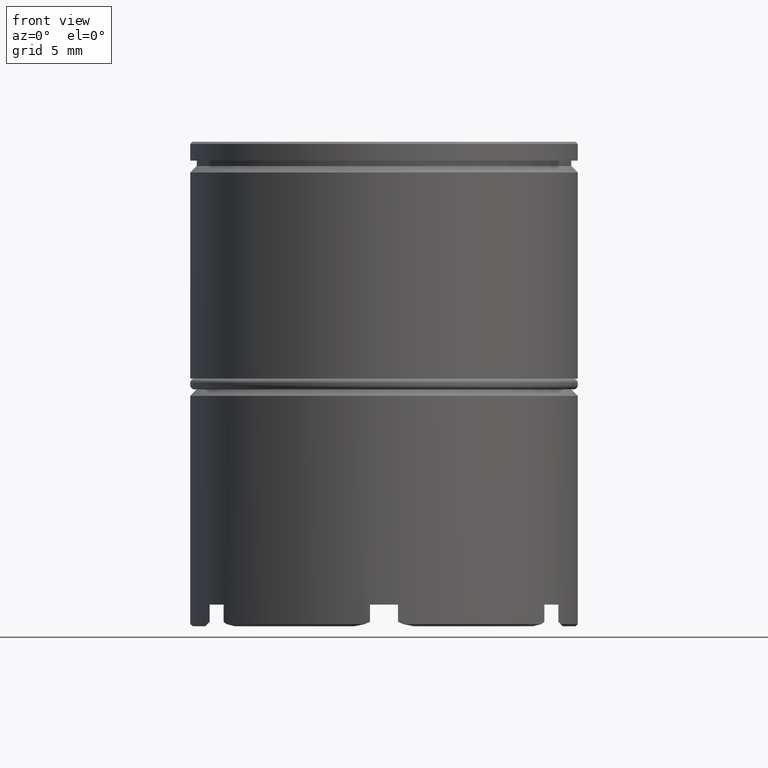
[diagram: clean part render]
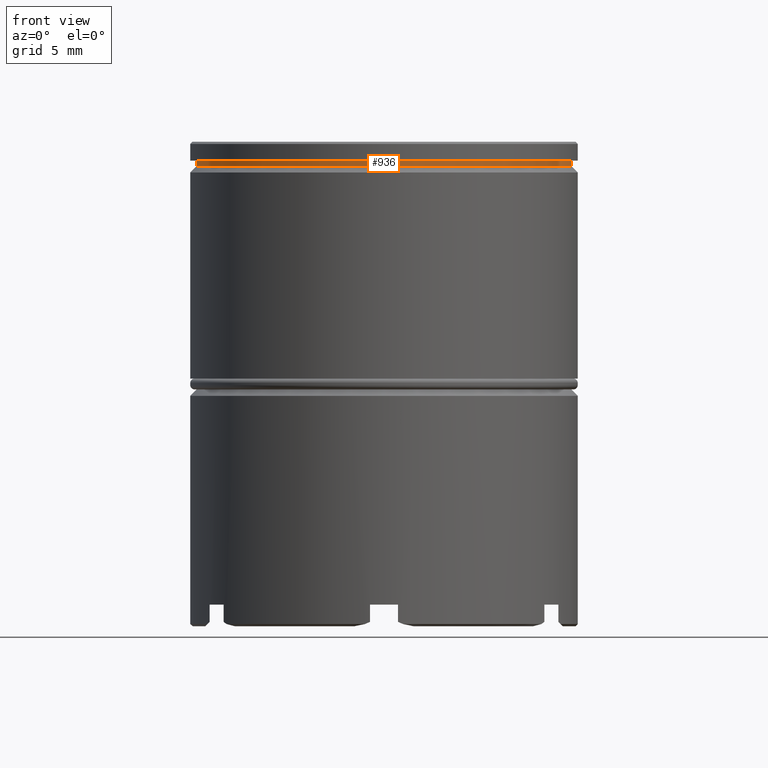
[diagram: same view with one face highlighted and labeled with its STEP entity id]
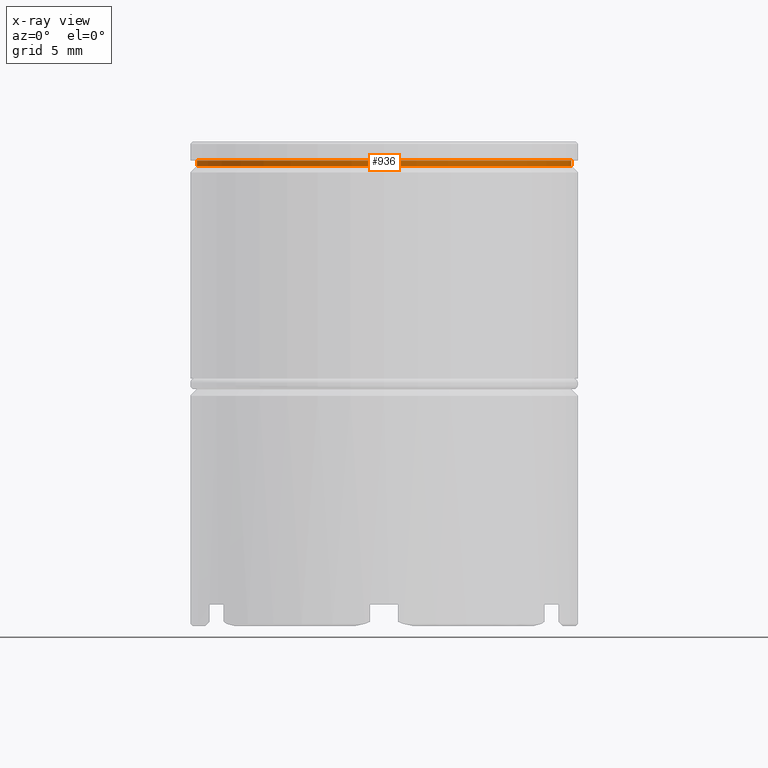
[diagram: x-ray of the same camera — body ghosted, the highlighted face saturated]
A machine part, front view. The second image highlights one B-rep face of the part: STEP entity #936.
The next image is the same camera in x-ray: the body ghosted, the highlighted face saturated — about 0% of this face is hidden behind the body in this view.
In plain terms, the highlighted cylindrical surface (partial cylindrical patch) has radius 8.7 mm, axis along (-0, -0, 1).
Its self-contained STEP definition (entity closure, byte-faithful):
#30 = CARTESIAN_POINT ( 'NONE',  ( 0.000000000000000000, 0.000000000000000000, -1.125000000000000222 ) ) ;
#61 = VERTEX_POINT ( 'NONE', #334 ) ;
#63 = CIRCLE ( 'NONE', #1600, 8.699999999999999289 ) ;
#134 = DIRECTION ( 'NONE',  ( -0.000000000000000000, -0.000000000000000000, 1.000000000000000000 ) ) ;
#154 = VERTEX_POINT ( 'NONE', #1330 ) ;
#173 = ORIENTED_EDGE ( 'NONE', *, *, #1210, .T. ) ;
#176 = DIRECTION ( 'NONE',  ( 1.000000000000000000, 0.000000000000000000, 0.000000000000000000 ) ) ;
#194 = EDGE_CURVE ( 'NONE', #154, #1027, #63, .T. ) ;
#226 = CARTESIAN_POINT ( 'NONE',  ( 0.000000000000000000, 0.000000000000000000, 0.000000000000000000 ) ) ;
#231 = CARTESIAN_POINT ( 'NONE',  ( 8.699999999999999289, 0.000000000000000000, -0.8749999999999998890 ) ) ;
#307 = EDGE_CURVE ( 'NONE', #1634, #1027, #1598, .T. ) ;
#334 = CARTESIAN_POINT ( 'NONE',  ( -8.699999999999999289, 1.065442715258197248E-15, -1.125000000000000222 ) ) ;
#343 = CYLINDRICAL_SURFACE ( 'NONE', #1543, 8.699999999999999289 ) ;
#361 = CIRCLE ( 'NONE', #1302, 8.699999999999999289 ) ;
#421 = CARTESIAN_POINT ( 'NONE',  ( 0.000000000000000000, 0.000000000000000000, -0.8749999999999998890 ) ) ;
#459 = DIRECTION ( 'NONE',  ( -0.000000000000000000, -0.000000000000000000, 1.000000000000000000 ) ) ;
#524 = DIRECTION ( 'NONE',  ( 1.000000000000000000, 0.000000000000000000, 0.000000000000000000 ) ) ;
#608 = EDGE_CURVE ( 'NONE', #61, #154, #1113, .T. ) ;
#682 = CARTESIAN_POINT ( 'NONE',  ( 8.699999999999999289, 0.000000000000000000, -1.125000000000000222 ) ) ;
#721 = DIRECTION ( 'NONE',  ( -0.000000000000000000, -0.000000000000000000, 1.000000000000000000 ) ) ;
#769 = VECTOR ( 'NONE', #134, 1000.000000000000000 ) ;
#823 = ORIENTED_EDGE ( 'NONE', *, *, #608, .F. ) ;
#936 = ADVANCED_FACE ( 'NONE', ( #1357 ), #343, .T. ) ;
#939 = EDGE_LOOP ( 'NONE', ( #823, #173, #1004, #1327 ) ) ;
#1004 = ORIENTED_EDGE ( 'NONE', *, *, #307, .T. ) ;
#1006 = VECTOR ( 'NONE', #459, 1000.000000000000000 ) ;
#1027 = VERTEX_POINT ( 'NONE', #231 ) ;
#1113 = LINE ( 'NONE', #1522, #769 ) ;
#1186 = DIRECTION ( 'NONE',  ( -0.000000000000000000, -0.000000000000000000, 1.000000000000000000 ) ) ;
#1210 = EDGE_CURVE ( 'NONE', #61, #1634, #361, .T. ) ;
#1227 = DIRECTION ( 'NONE',  ( 1.000000000000000000, 0.000000000000000000, 0.000000000000000000 ) ) ;
#1302 = AXIS2_PLACEMENT_3D ( 'NONE', #30, #1536, #524 ) ;
#1327 = ORIENTED_EDGE ( 'NONE', *, *, #194, .F. ) ;
#1330 = CARTESIAN_POINT ( 'NONE',  ( -8.699999999999999289, 1.065442715258197248E-15, -0.8749999999999998890 ) ) ;
#1357 = FACE_OUTER_BOUND ( 'NONE', #939, .T. ) ;
#1483 = CARTESIAN_POINT ( 'NONE',  ( 8.699999999999999289, 0.000000000000000000, 0.000000000000000000 ) ) ;
#1522 = CARTESIAN_POINT ( 'NONE',  ( -8.699999999999999289, 1.065442715258197248E-15, 0.000000000000000000 ) ) ;
#1536 = DIRECTION ( 'NONE',  ( -0.000000000000000000, -0.000000000000000000, 1.000000000000000000 ) ) ;
#1543 = AXIS2_PLACEMENT_3D ( 'NONE', #226, #721, #1227 ) ;
#1598 = LINE ( 'NONE', #1483, #1006 ) ;
#1600 = AXIS2_PLACEMENT_3D ( 'NONE', #421, #1186, #176 ) ;
#1634 = VERTEX_POINT ( 'NONE', #682 ) ;